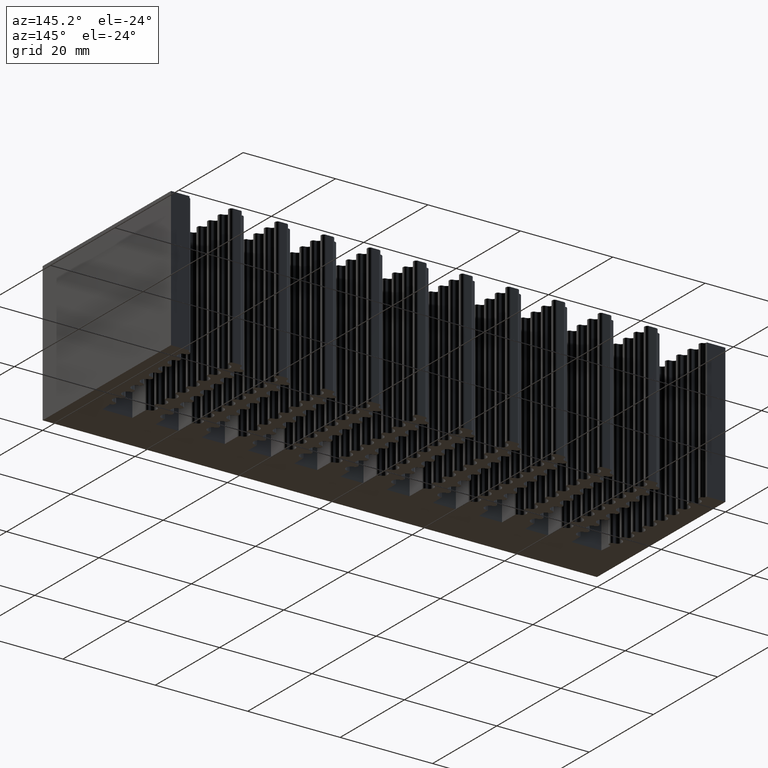
[diagram: clean part render]
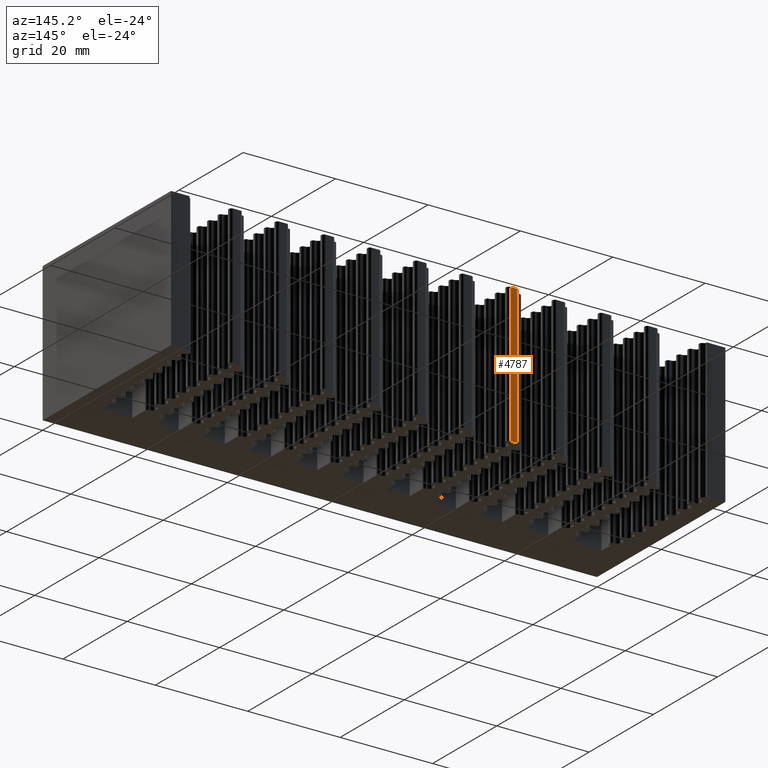
[diagram: same view with one face highlighted and labeled with its STEP entity id]
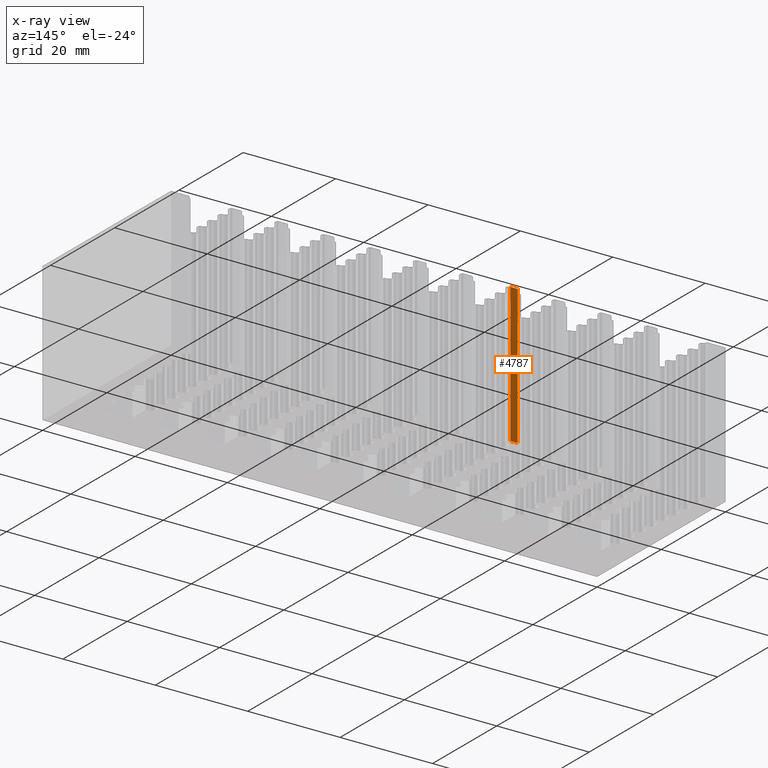
[diagram: x-ray of the same camera — body ghosted, the highlighted face saturated]
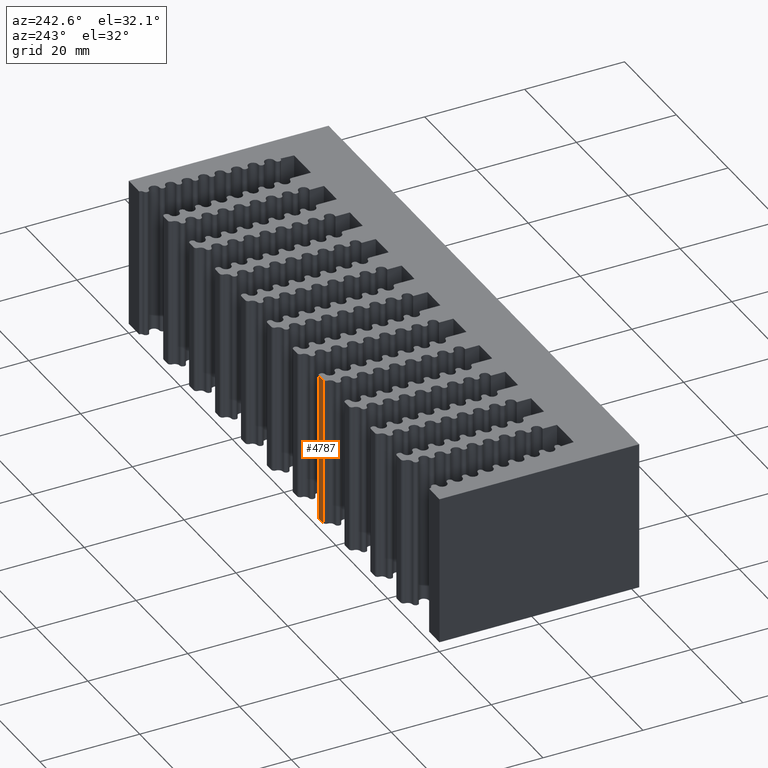
[diagram: same view with one face highlighted and labeled with its STEP entity id]
A machine part, auxiliary view. The second image highlights one B-rep face of the part: STEP entity #4787.
The next image is the same camera in x-ray: the body ghosted, the highlighted face saturated — about 0% of this face is hidden behind the body in this view.
A second angle (auxiliary view) of the same face is appended — the face is thin or edge-on in the first view.
In plain terms, the highlighted planar face has unit normal (0, 1, -0).
Its self-contained STEP definition (entity closure, byte-faithful):
#2 = LINE ( 'NONE', #18652, #5405 ) ;
#672 = LINE ( 'NONE', #16027, #8238 ) ;
#1095 = PLANE ( 'NONE',  #17691 ) ;
#1157 = EDGE_CURVE ( 'NONE', #8354, #2507, #4268, .T. ) ;
#1977 = DIRECTION ( 'NONE',  ( -1.000000000000000000, 0.0000000000000000000, 0.0000000000000000000 ) ) ;
#2507 = VERTEX_POINT ( 'NONE', #5847 ) ;
#3360 = ORIENTED_EDGE ( 'NONE', *, *, #17265, .F. ) ;
#3416 = ORIENTED_EDGE ( 'NONE', *, *, #1157, .T. ) ;
#3734 = LINE ( 'NONE', #5497, #16083 ) ;
#4268 = LINE ( 'NONE', #10917, #14689 ) ;
#4408 = DIRECTION ( 'NONE',  ( 0.0000000000000000000, 0.0000000000000000000, 1.000000000000000000 ) ) ;
#4515 = ORIENTED_EDGE ( 'NONE', *, *, #19974, .F. ) ;
#4787 = ADVANCED_FACE ( 'NONE', ( #12822 ), #1095, .T. ) ;
#4931 = CARTESIAN_POINT ( 'NONE',  ( 46.51038164213050408, 39.99999999999998579, 0.0000000000000000000 ) ) ;
#5405 = VECTOR ( 'NONE', #6833, 1000.000000000000000 ) ;
#5497 = CARTESIAN_POINT ( 'NONE',  ( 46.51038164213050408, 39.99999999999998579, 0.0000000000000000000 ) ) ;
#5847 = CARTESIAN_POINT ( 'NONE',  ( 44.98997438783715097, 39.99999999999998579, -30.00000000000000000 ) ) ;
#6279 = CARTESIAN_POINT ( 'NONE',  ( 46.51038164213050408, 39.99999999999998579, -30.00000000000000000 ) ) ;
#6378 = DIRECTION ( 'NONE',  ( 0.0000000000000000000, 1.000000000000000000, -0.0000000000000000000 ) ) ;
#6833 = DIRECTION ( 'NONE',  ( 0.0000000000000000000, 0.0000000000000000000, 1.000000000000000000 ) ) ;
#7930 = ORIENTED_EDGE ( 'NONE', *, *, #12049, .T. ) ;
#8238 = VECTOR ( 'NONE', #10836, 1000.000000000000000 ) ;
#8354 = VERTEX_POINT ( 'NONE', #8364 ) ;
#8364 = CARTESIAN_POINT ( 'NONE',  ( 46.51038164213050408, 39.99999999999998579, -30.00000000000000000 ) ) ;
#10836 = DIRECTION ( 'NONE',  ( 0.0000000000000000000, 0.0000000000000000000, 1.000000000000000000 ) ) ;
#10900 = CARTESIAN_POINT ( 'NONE',  ( 44.98997438783715097, 39.99999999999998579, 0.0000000000000000000 ) ) ;
#10917 = CARTESIAN_POINT ( 'NONE',  ( 46.51038164213050408, 39.99999999999998579, -30.00000000000000000 ) ) ;
#12049 = EDGE_CURVE ( 'NONE', #2507, #14634, #2, .T. ) ;
#12822 = FACE_OUTER_BOUND ( 'NONE', #16830, .T. ) ;
#14551 = VERTEX_POINT ( 'NONE', #4931 ) ;
#14634 = VERTEX_POINT ( 'NONE', #10900 ) ;
#14689 = VECTOR ( 'NONE', #20851, 1000.000000000000000 ) ;
#16027 = CARTESIAN_POINT ( 'NONE',  ( 46.51038164213050408, 39.99999999999998579, -30.00000000000000000 ) ) ;
#16083 = VECTOR ( 'NONE', #1977, 1000.000000000000000 ) ;
#16830 = EDGE_LOOP ( 'NONE', ( #3360, #4515, #3416, #7930 ) ) ;
#17265 = EDGE_CURVE ( 'NONE', #14551, #14634, #3734, .T. ) ;
#17691 = AXIS2_PLACEMENT_3D ( 'NONE', #6279, #6378, #4408 ) ;
#18652 = CARTESIAN_POINT ( 'NONE',  ( 44.98997438783715097, 39.99999999999998579, -30.00000000000000000 ) ) ;
#19974 = EDGE_CURVE ( 'NONE', #8354, #14551, #672, .T. ) ;
#20851 = DIRECTION ( 'NONE',  ( -1.000000000000000000, 0.0000000000000000000, 0.0000000000000000000 ) ) ;